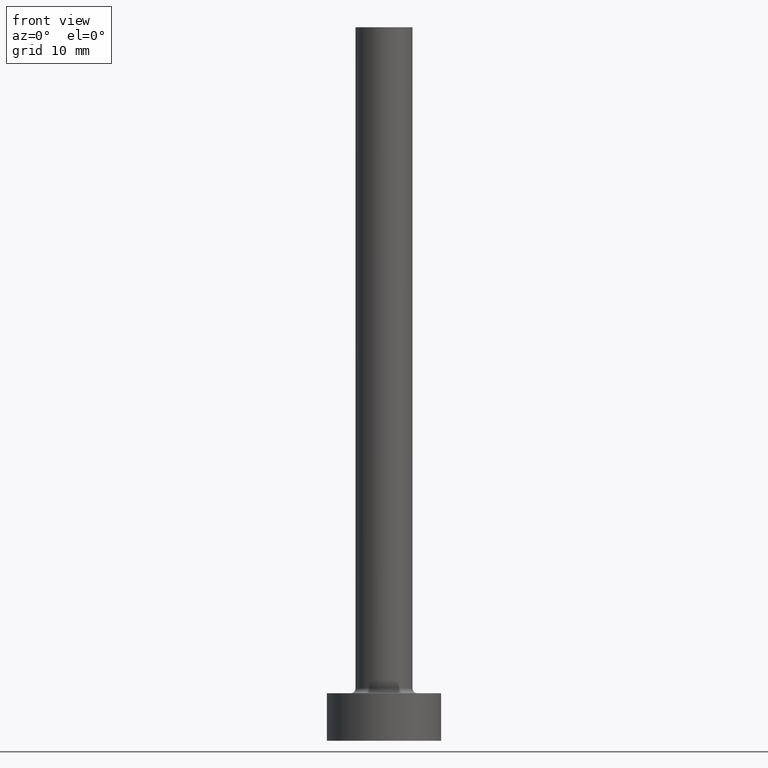
[diagram: clean part render]
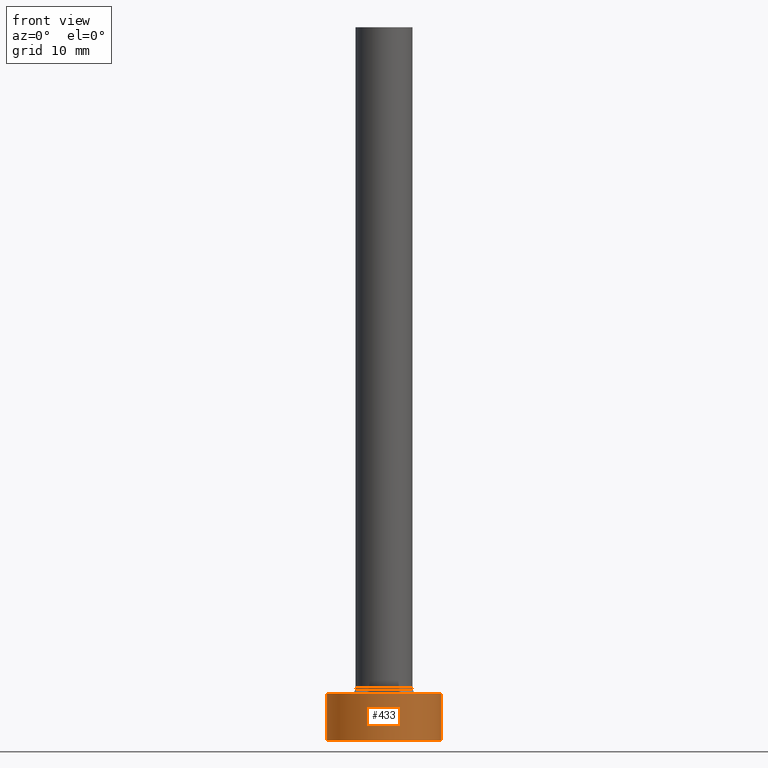
[diagram: same view with one face highlighted and labeled with its STEP entity id]
A machine part, front view. The second image highlights one B-rep face of the part: STEP entity #433.
In plain terms, the highlighted cylindrical surface (partial cylindrical patch) has radius 6 mm, axis along (-0, -0, -1).
Its self-contained STEP definition (entity closure, byte-faithful):
#3 = DIRECTION ( 'NONE',  ( -0.000000000000000000, -0.000000000000000000, -1.000000000000000000 ) ) ;
#22 = CARTESIAN_POINT ( 'NONE',  ( -6.000000000000000888, 0.000000000000000000, 5.000000000000000000 ) ) ;
#51 = DIRECTION ( 'NONE',  ( 1.000000000000000000, 0.000000000000000000, 0.000000000000000000 ) ) ;
#52 = ORIENTED_EDGE ( 'NONE', *, *, #443, .F. ) ;
#67 = CARTESIAN_POINT ( 'NONE',  ( -6.000000000000000888, 0.000000000000000000, 0.000000000000000000 ) ) ;
#87 = AXIS2_PLACEMENT_3D ( 'NONE', #138, #279, #385 ) ;
#95 = CYLINDRICAL_SURFACE ( 'NONE', #87, 6.000000000000000888 ) ;
#102 = DIRECTION ( 'NONE',  ( 1.000000000000000000, 0.000000000000000000, 0.000000000000000000 ) ) ;
#103 = CARTESIAN_POINT ( 'NONE',  ( 6.000000000000000888, 7.347880794884120722E-16, 5.000000000000000000 ) ) ;
#105 = CARTESIAN_POINT ( 'NONE',  ( 6.000000000000000888, 7.347880794884120722E-16, 0.000000000000000000 ) ) ;
#108 = DIRECTION ( 'NONE',  ( 0.000000000000000000, 0.000000000000000000, 1.000000000000000000 ) ) ;
#120 = VERTEX_POINT ( 'NONE', #22 ) ;
#129 = CARTESIAN_POINT ( 'NONE',  ( -6.000000000000000888, 0.000000000000000000, 5.000000000000000000 ) ) ;
#132 = CARTESIAN_POINT ( 'NONE',  ( 6.000000000000000888, 7.347880794884120722E-16, 5.000000000000000000 ) ) ;
#135 = AXIS2_PLACEMENT_3D ( 'NONE', #421, #202, #102 ) ;
#138 = CARTESIAN_POINT ( 'NONE',  ( 0.000000000000000000, 0.000000000000000000, 5.000000000000000000 ) ) ;
#164 = VECTOR ( 'NONE', #3, 1000.000000000000000 ) ;
#193 = VECTOR ( 'NONE', #278, 1000.000000000000000 ) ;
#202 = DIRECTION ( 'NONE',  ( 0.000000000000000000, 0.000000000000000000, 1.000000000000000000 ) ) ;
#210 = CIRCLE ( 'NONE', #302, 6.000000000000000888 ) ;
#249 = VERTEX_POINT ( 'NONE', #105 ) ;
#258 = ORIENTED_EDGE ( 'NONE', *, *, #362, .F. ) ;
#278 = DIRECTION ( 'NONE',  ( -0.000000000000000000, -0.000000000000000000, -1.000000000000000000 ) ) ;
#279 = DIRECTION ( 'NONE',  ( -0.000000000000000000, -0.000000000000000000, -1.000000000000000000 ) ) ;
#284 = LINE ( 'NONE', #103, #164 ) ;
#286 = EDGE_CURVE ( 'NONE', #120, #307, #318, .T. ) ;
#295 = EDGE_CURVE ( 'NONE', #307, #249, #425, .T. ) ;
#302 = AXIS2_PLACEMENT_3D ( 'NONE', #360, #108, #51 ) ;
#307 = VERTEX_POINT ( 'NONE', #67 ) ;
#316 = VERTEX_POINT ( 'NONE', #132 ) ;
#318 = LINE ( 'NONE', #129, #193 ) ;
#328 = ORIENTED_EDGE ( 'NONE', *, *, #286, .T. ) ;
#360 = CARTESIAN_POINT ( 'NONE',  ( 0.000000000000000000, 0.000000000000000000, 5.000000000000000000 ) ) ;
#362 = EDGE_CURVE ( 'NONE', #316, #249, #284, .T. ) ;
#385 = DIRECTION ( 'NONE',  ( -1.000000000000000000, 0.000000000000000000, 0.000000000000000000 ) ) ;
#404 = EDGE_LOOP ( 'NONE', ( #258, #52, #328, #436 ) ) ;
#421 = CARTESIAN_POINT ( 'NONE',  ( 0.000000000000000000, 0.000000000000000000, 0.000000000000000000 ) ) ;
#425 = CIRCLE ( 'NONE', #135, 6.000000000000000888 ) ;
#429 = FACE_OUTER_BOUND ( 'NONE', #404, .T. ) ;
#433 = ADVANCED_FACE ( 'NONE', ( #429 ), #95, .T. ) ;
#436 = ORIENTED_EDGE ( 'NONE', *, *, #295, .T. ) ;
#443 = EDGE_CURVE ( 'NONE', #120, #316, #210, .T. ) ;